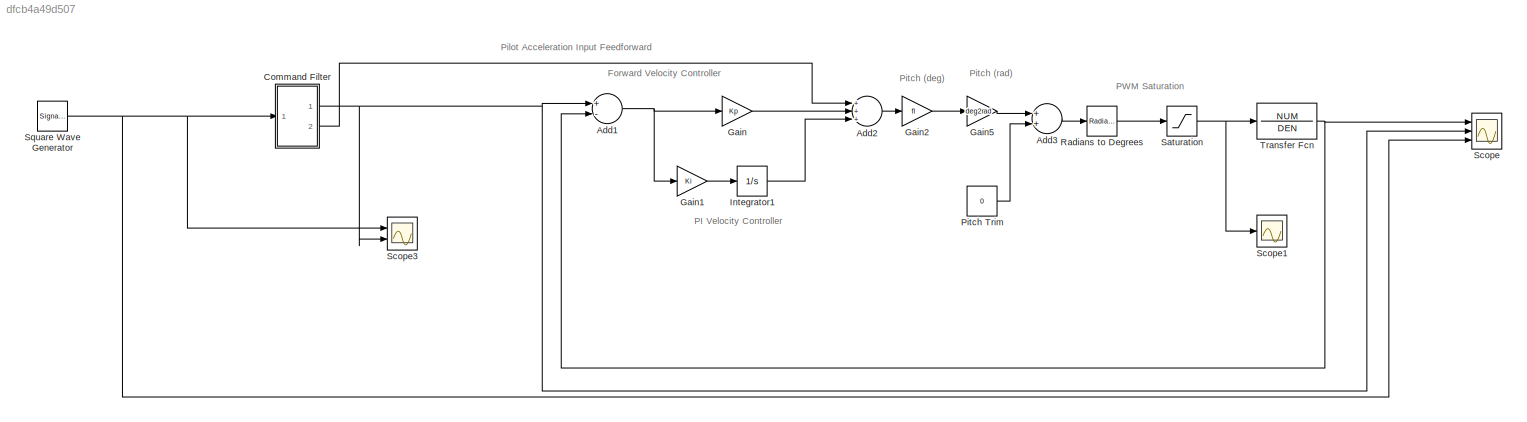
MODEL slx_dfcb4a49d507
KIND model
CONFIG AbsTol = auto
CONFIG EnableMultiTasking = off
CONFIG FixedStep = auto
CONFIG MaxStep = auto
CONFIG MinStep = auto
CONFIG RelTol = 1e-3
CONFIG SampleTimeConstraint = Unconstrained
CONFIG Solver = VariableStepAuto
CONFIG SolverName = VariableStepAuto
CONFIG StartTime = 0.0
CONFIG StopTime = 30
BLOCK [Sum] Add1
  InputSameDT = off
  Inputs = +-
  OutDataTypeStr = Inherit: Inherit via internal rule
  Ports = [2, 1]
  SaturateOnIntegerOverflow = off
BLOCK [Sum] Add2
  InputSameDT = off
  Inputs = +++
  OutDataTypeStr = Inherit: Inherit via internal rule
  Ports = [3, 1]
  SaturateOnIntegerOverflow = off
BLOCK [Sum] Add3
  InputSameDT = off
  OutDataTypeStr = Inherit: Inherit via internal rule
  Ports = [2, 1]
  SaturateOnIntegerOverflow = off
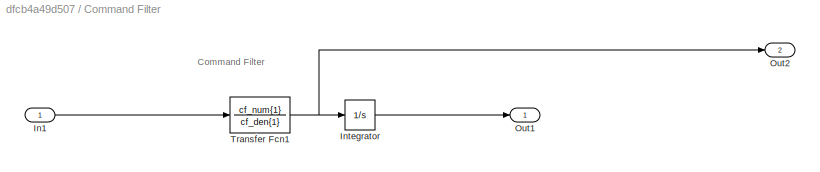
BLOCK [SubSystem] Command Filter
  Ports = [1, 2]
  RequestExecContextInheritance = off
BLOCK [Inport] Command Filter/In1
  IconDisplay = Port number
BLOCK [Integrator] Command Filter/Integrator
  Ports = [1, 1]
BLOCK [Outport] Command Filter/Out1
  IconDisplay = Port number
  VectorParamsAs1DForOutWhenUnconnected = off
BLOCK [Outport] Command Filter/Out2
  IconDisplay = Port number
  Port = 2
  VectorParamsAs1DForOutWhenUnconnected = off
BLOCK [TransferFcn] Command Filter/Transfer Fcn1
  Denominator = cf_den{1}
  Numerator = cf_num{1}
BLOCK [Gain] Gain
  Gain = Kp
  OutDataTypeStr = Inherit: Inherit via internal rule
  ParamDataTypeStr = Inherit: Inherit via internal rule
  SaturateOnIntegerOverflow = off
BLOCK [Gain] Gain1
  Gain = Ki
  OutDataTypeStr = Inherit: Inherit via internal rule
  ParamDataTypeStr = Inherit: Inherit via internal rule
  SaturateOnIntegerOverflow = off
BLOCK [Gain] Gain2
  Gain = fl
  OutDataTypeStr = Inherit: Inherit via internal rule
  ParamDataTypeStr = Inherit: Inherit via internal rule
  SaturateOnIntegerOverflow = off
BLOCK [Gain] Gain5
  Gain = deg2rad
  OutDataTypeStr = Inherit: Inherit via internal rule
  ParamDataTypeStr = Inherit: Inherit via internal rule
  SaturateOnIntegerOverflow = off
BLOCK [Integrator] Integrator1
  Ports = [1, 1]
BLOCK [Constant] Pitch Trim
  Value = 0
BLOCK [Reference] Radians to Degrees  REF=simulink_extras/Transformations/Radians
to Degrees
  Ports = [1, 1]
  SourceBlock = simulink_extras/Transformations/Radians\nto Degrees
  SourceProductBaseCode = SL
  SourceProductName = Simulink
  SourceType = RadiansToDegrees
BLOCK [Saturate] Saturation
  InputPortMap = u0
  LowerLimit = -400
  Ports = [1, 1]
  UpperLimit = 400
BLOCK [Scope] Scope
  Floating = off
  NumInputPorts = 3
  Ports = [3]
  ScopeSpecificationString = Simulink.scopes.TimeScopeBlockCfg('CurrentConfiguration', extmgr.ConfigurationSet(extmgr.Configuration('Core','General UI',true),extmgr.Configuration('Core','Source UI',true),extmgr.Configuration('Sources','WiredSimulink',true),extmgr.Configuration('Visuals','Time Domain',true,'SerializedDisplays',{struct('MinYLimReal','-1.55128','MaxYLimReal','1.55029','YLabelReal','','MinYLimMag','0.00000','MaxY...<+1449ch>
BLOCK [Scope] Scope1
  Floating = off
  NumInputPorts = 1
  Ports = [1]
  ScopeSpecificationString = Simulink.scopes.TimeScopeBlockCfg('CurrentConfiguration', extmgr.ConfigurationSet(extmgr.Configuration('Core','General UI',true),extmgr.Configuration('Core','Source UI',true),extmgr.Configuration('Sources','WiredSimulink',true,'DataLoggingVariableName','ScopeData1'),extmgr.Configuration('Visuals','Time Domain',true,'SerializedDisplays',{struct('MinYLimReal','-361.71728','MaxYLimReal','362.15831','...<+1465ch>
BLOCK [Scope] Scope3
  Floating = off
  NumInputPorts = 2
  Ports = [2]
  ScopeSpecificationString = Simulink.scopes.TimeScopeBlockCfg('CurrentConfiguration', extmgr.ConfigurationSet(extmgr.Configuration('Core','General UI',true),extmgr.Configuration('Core','Source UI',true),extmgr.Configuration('Sources','WiredSimulink',true,'DataLoggingVariableName','ScopeData3'),extmgr.Configuration('Visuals','Time Domain',true,'SerializedDisplays',{struct('MinYLimReal','-1.25','MaxYLimReal','1.25','YLabelReal...<+1408ch>
BLOCK [SignalGenerator] Square Wave Generator
  Frequency = 0.25
  Ports = [0, 1]
  Units = rad/sec
  WaveForm = square
BLOCK [TransferFcn] Transfer Fcn
  Denominator = DEN
  Numerator = NUM
ANNOTATION (root): Forward Velocity Controller
ANNOTATION (root): PI Velocity Controller
ANNOTATION (root): PWM Saturation
ANNOTATION (root): Pilot Acceleration Input Feedforward
ANNOTATION (root): Pitch (deg)
ANNOTATION (root): Pitch (rad)
ANNOTATION Command Filter: Command Filter
NET Add1:1 -> Gain1:1, Gain:1
LINE Add2:1 -> Gain2:1
LINE Add3:1 -> Radians to Degrees:1
LINE Command Filter/In1:1 -> Command Filter/Transfer Fcn1:1
LINE Command Filter/Integrator:1 -> Command Filter/Out1:1
NET Command Filter/Transfer Fcn1:1 -> Command Filter/Integrator:1, Command Filter/Out2:1
NET Command Filter:1 -> Add1:1, Scope3:2, Scope:2
LINE Command Filter:2 -> Add2:1
LINE Gain1:1 -> Integrator1:1
LINE Gain2:1 -> Gain5:1
LINE Gain5:1 -> Add3:1
LINE Gain:1 -> Add2:2
LINE Integrator1:1 -> Add2:3
LINE Pitch Trim:1 -> Add3:2
LINE Radians to Degrees:1 -> Saturation:1
NET Saturation:1 -> Scope1:1, Transfer Fcn:1
NET Square Wave Generator:1 -> Command Filter:1, Scope3:1, Scope:3
NET Transfer Fcn:1 -> Add1:2, Scope:1
note: NET lines group one-source signal fan-out (src -> all destinations, sorted); 1:1 wires keep LINE
